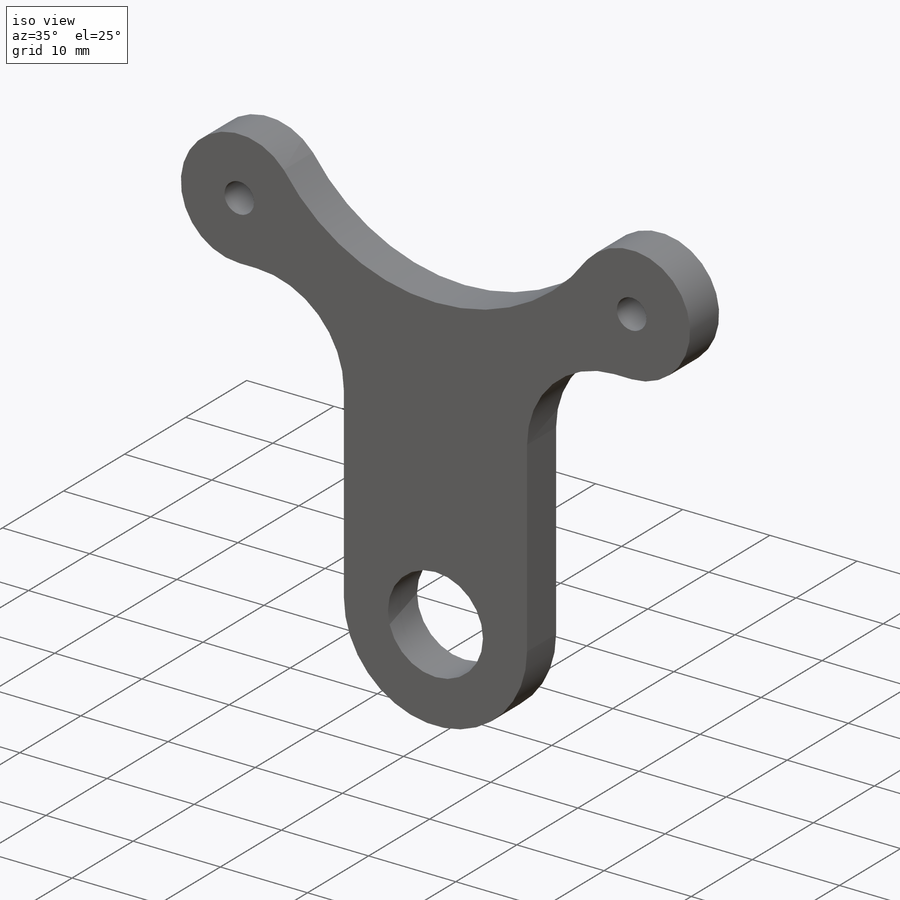
[diagram: iso view]
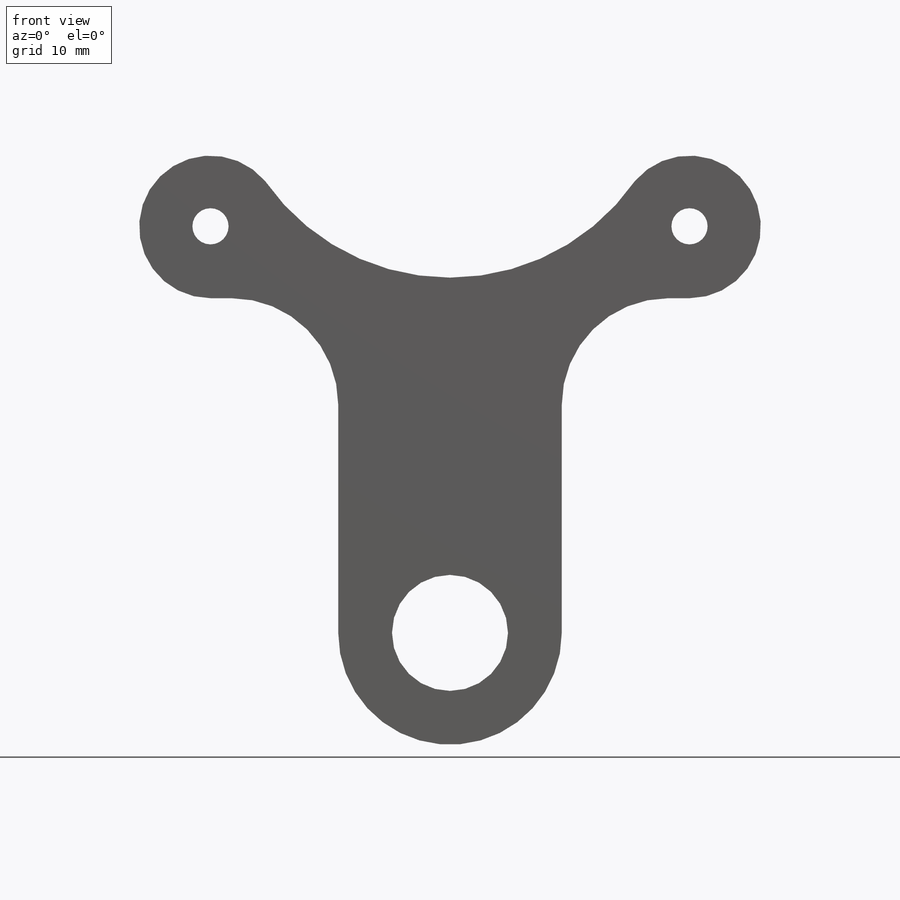
[diagram: front view]
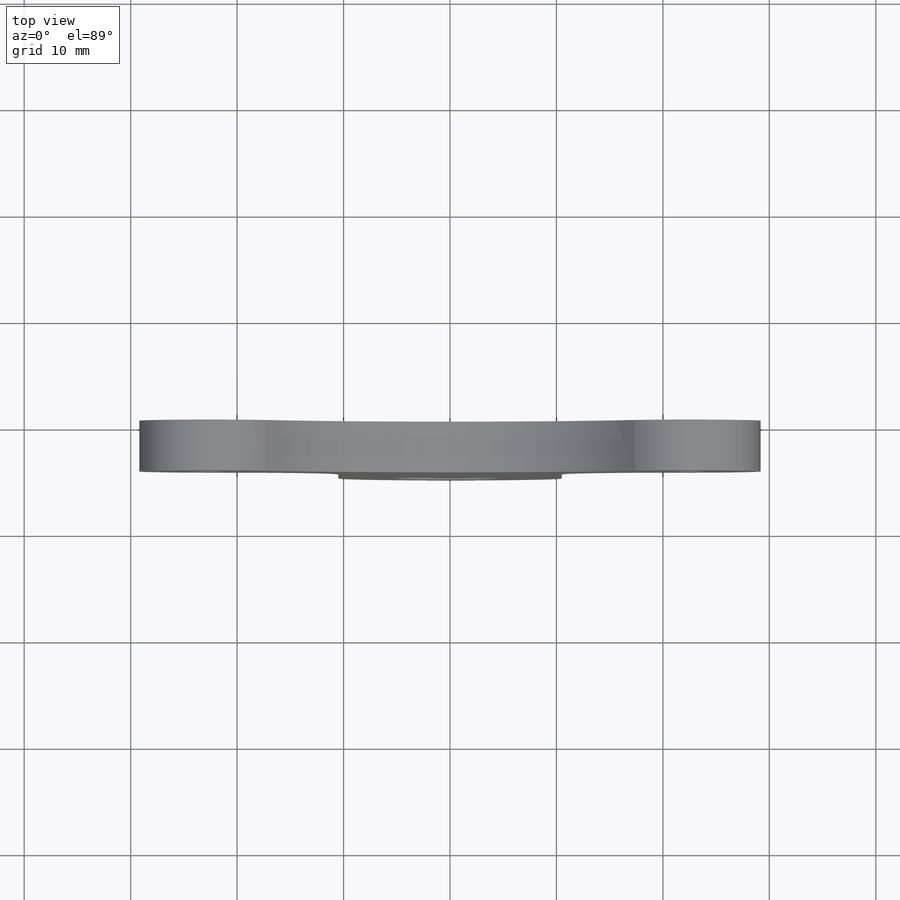
[diagram: top view]
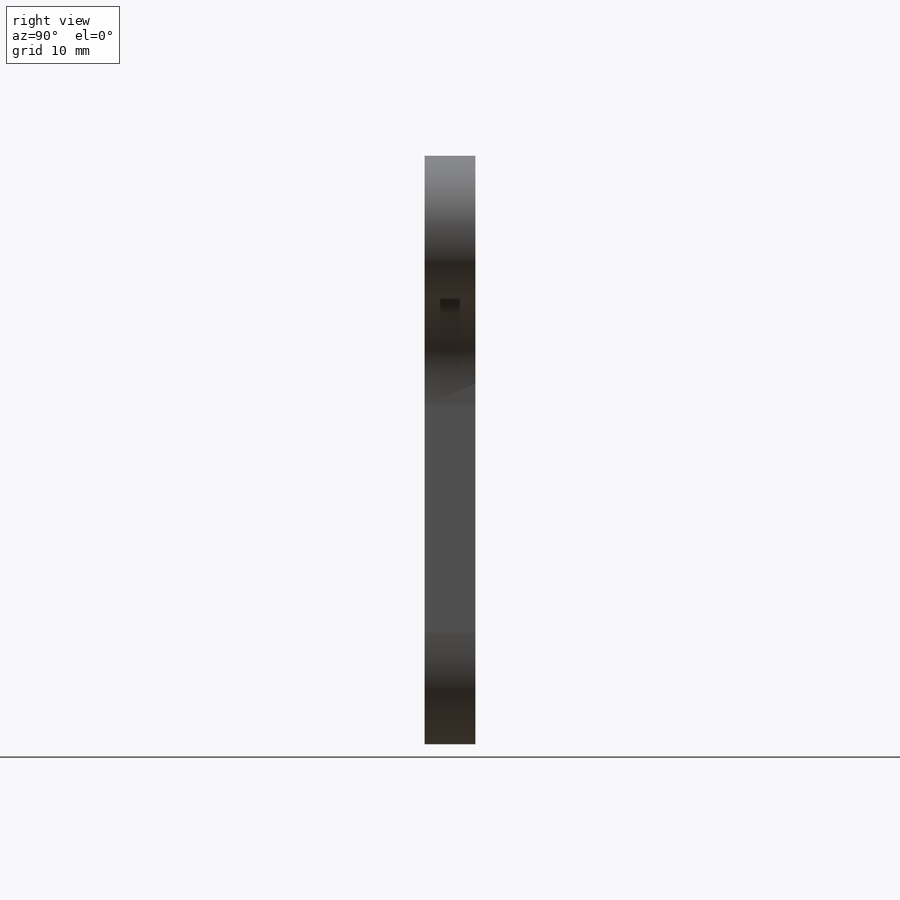
[diagram: right view]
SOLIDWORKS PART (.sldprt)
format: sldprt  version: not decoded by parser v0  size: 218,112 bytes
history: native  units: mm
features: sketch x3, material x1, extrude x1, hole x1 (+13 scaffold rows collapsed)
feature tree (19):
  scaffold x13  (default folders/planes/origin — collapsed)
  material  "6061-T6 (SS)"
  sketch  "Sketch1"  dims[c1.D1=10.0mm c1.D2=10.0mm c1.D3=~7.530661mm c1.D4=10.0mm c1.D6=5.496mm c2.D1=45.0mm c2.D3=5.0mm c2.D4=5.0mm c3.D3=2.5mm c3.D4=2.5mm c4.D3=5.0mm c4.D4=~27.874189mm c5.D3=5.0mm c5.D4=~27.874189mm c6.D3=~38.139339mm c6.D4=58.4mm c6.D5=~55.339339mm]
  extrude  "Boss-Extrude1"  Depth=4.763mm
  hole  "M3 Clearance Hole1"  Diameter=3.2mm Depth=4.763mm
  sketch  "Sketch3"  dims[c1.D1=45.0mm c1.D2=22.5mm c1.D3=22.5mm c1.D4=~13.490176mm c2.D2=22.5mm c2.D3=22.5mm]
  sketch  "Sketch2"  dims[hole-wizard template sketch: 61 standard entries collapsed; hole parameters above]
decode coverage: 5 of 5 modeling features carry decoded parameters
note: ~ marks probable driven/reference dimensions
note: suppression state not decoded; provenance and decode notes live in map.json
